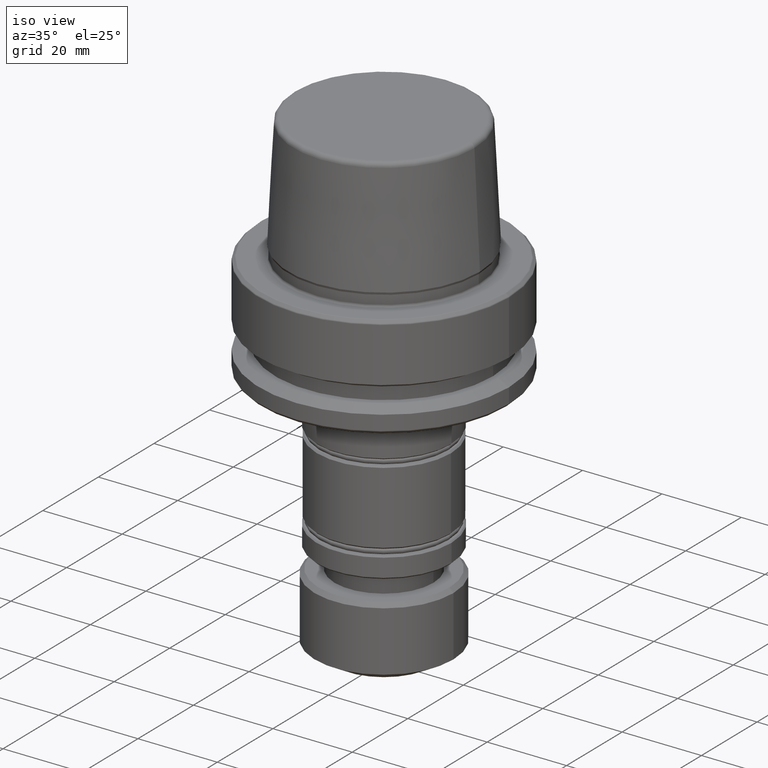
[diagram: clean part render]
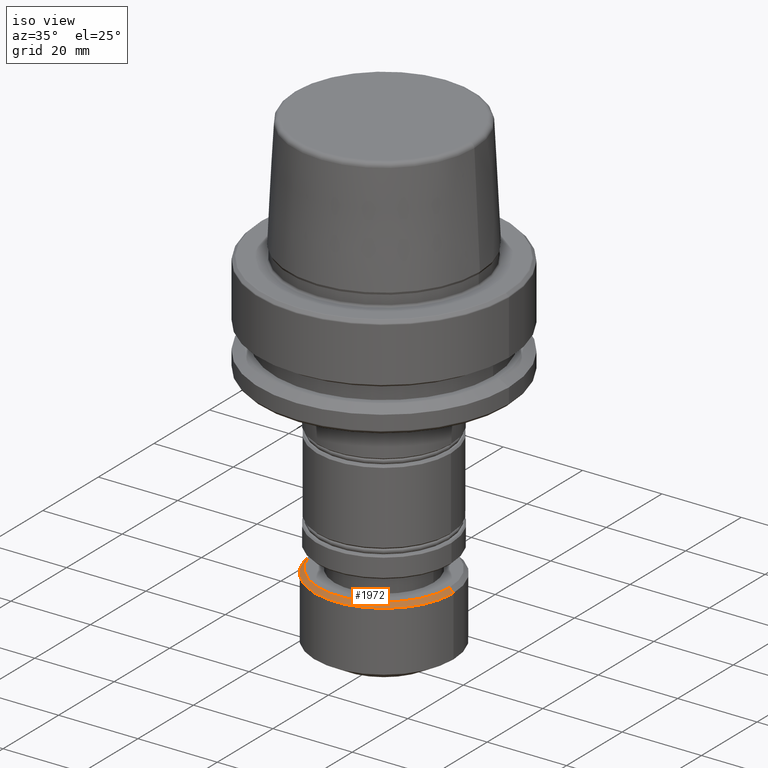
[diagram: same view with one face highlighted and labeled with its STEP entity id]
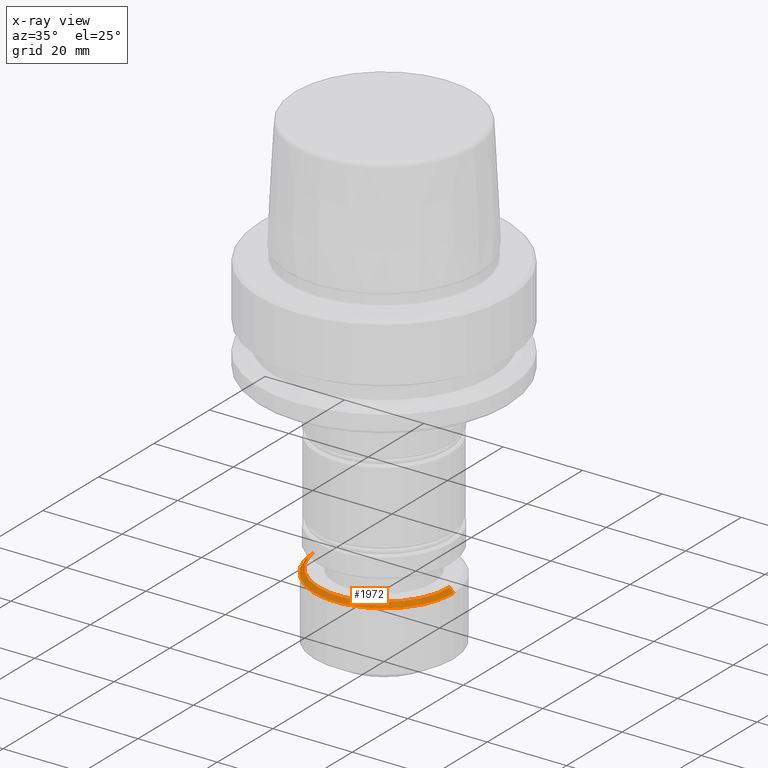
[diagram: x-ray of the same camera — body ghosted, the highlighted face saturated]
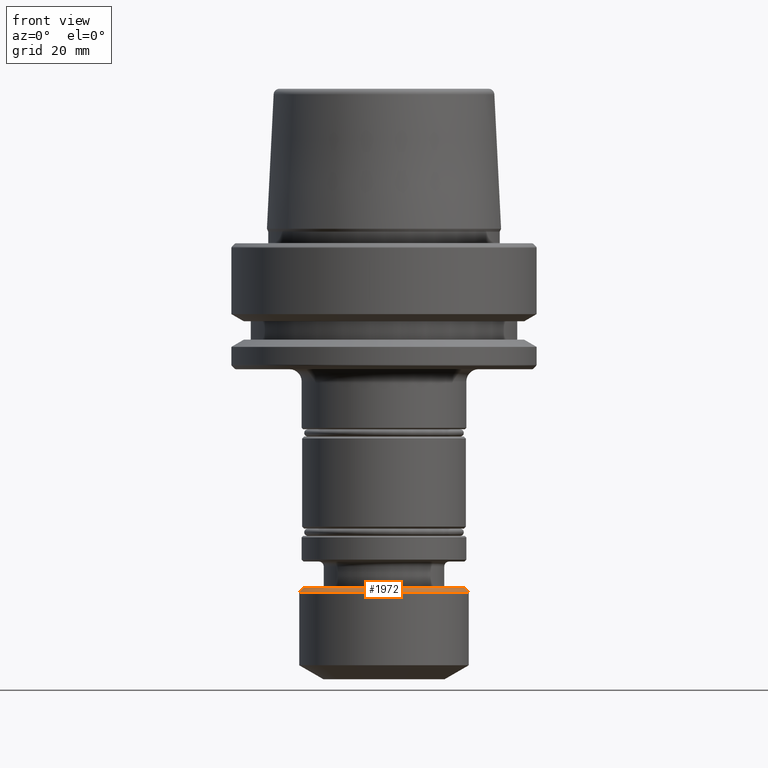
[diagram: same view with one face highlighted and labeled with its STEP entity id]
A machine part, iso view. The second image highlights one B-rep face of the part: STEP entity #1972.
The next image is the same camera in x-ray: the body ghosted, the highlighted face saturated — about 0% of this face is hidden behind the body in this view.
A second angle (front view) of the same face is appended — the face is thin or edge-on in the first view.
In plain terms, the highlighted conical surface has half-angle 45 deg.
Its self-contained STEP definition (entity closure, byte-faithful):
#50 = CIRCLE ( 'NONE', #1349, 16.50000000000218100 ) ;
#107 = DIRECTION ( 'NONE',  ( -0.0000000000000000000, -0.0000000000000000000, 1.000000000000000000 ) ) ;
#152 = CARTESIAN_POINT ( 'NONE',  ( -16.50000000000218100, 0.0000000000000000000, -70.99999999999987200 ) ) ;
#217 = DIRECTION ( 'NONE',  ( 0.0000000000000000000, 0.0000000000000000000, -1.000000000000000000 ) ) ;
#236 = DIRECTION ( 'NONE',  ( -0.7071067811865474600, 0.0000000000000000000, -0.7071067811865475700 ) ) ;
#243 = CARTESIAN_POINT ( 'NONE',  ( 16.50000000000218100, 2.020667218593399700E-015, -70.99999999999987200 ) ) ;
#303 = DIRECTION ( 'NONE',  ( -0.0000000000000000000, -0.0000000000000000000, 1.000000000000000000 ) ) ;
#334 = VECTOR ( 'NONE', #236, 1000.000000000000000 ) ;
#365 = CARTESIAN_POINT ( 'NONE',  ( 17.50000000000229200, 0.0000000000000000000, -71.99999999999998600 ) ) ;
#374 = VERTEX_POINT ( 'NONE', #704 ) ;
#439 = CIRCLE ( 'NONE', #2087, 17.50000000000229200 ) ;
#450 = DIRECTION ( 'NONE',  ( 0.7071067811865474600, 8.659560562354931600E-017, -0.7071067811865475700 ) ) ;
#451 = ORIENTED_EDGE ( 'NONE', *, *, #1308, .T. ) ;
#495 = VERTEX_POINT ( 'NONE', #1672 ) ;
#685 = CARTESIAN_POINT ( 'NONE',  ( 0.0000000000000000000, 0.0000000000000000000, -70.99999999999987200 ) ) ;
#704 = CARTESIAN_POINT ( 'NONE',  ( -16.50000000000218100, 0.0000000000000000000, -70.99999999999987200 ) ) ;
#711 = VERTEX_POINT ( 'NONE', #365 ) ;
#723 = CARTESIAN_POINT ( 'NONE',  ( 0.0000000000000000000, 0.0000000000000000000, -71.99999999999998600 ) ) ;
#730 = DIRECTION ( 'NONE',  ( 1.000000000000000000, 0.0000000000000000000, 0.0000000000000000000 ) ) ;
#851 = LINE ( 'NONE', #152, #334 ) ;
#874 = EDGE_CURVE ( 'NONE', #1082, #711, #1751, .T. ) ;
#948 = ORIENTED_EDGE ( 'NONE', *, *, #874, .F. ) ;
#988 = FACE_OUTER_BOUND ( 'NONE', #1539, .T. ) ;
#1077 = CARTESIAN_POINT ( 'NONE',  ( 16.50000000000218100, 2.081899558550774400E-015, -70.99999999999987200 ) ) ;
#1082 = VERTEX_POINT ( 'NONE', #1077 ) ;
#1239 = CARTESIAN_POINT ( 'NONE',  ( 0.0000000000000000000, 0.0000000000000000000, -70.99999999999987200 ) ) ;
#1308 = EDGE_CURVE ( 'NONE', #495, #711, #439, .T. ) ;
#1326 = DIRECTION ( 'NONE',  ( -1.000000000000000000, 0.0000000000000000000, 0.0000000000000000000 ) ) ;
#1349 = AXIS2_PLACEMENT_3D ( 'NONE', #1239, #303, #1411 ) ;
#1381 = EDGE_CURVE ( 'NONE', #374, #495, #851, .T. ) ;
#1411 = DIRECTION ( 'NONE',  ( 1.000000000000000000, 0.0000000000000000000, 0.0000000000000000000 ) ) ;
#1479 = CONICAL_SURFACE ( 'NONE', #1859, 16.50000000000218100, 0.7853981633974482800 ) ;
#1539 = EDGE_LOOP ( 'NONE', ( #948, #1844, #1853, #451 ) ) ;
#1672 = CARTESIAN_POINT ( 'NONE',  ( -17.50000000000229200, 2.143131898508148700E-015, -71.99999999999998600 ) ) ;
#1722 = EDGE_CURVE ( 'NONE', #374, #1082, #50, .T. ) ;
#1751 = LINE ( 'NONE', #243, #1752 ) ;
#1752 = VECTOR ( 'NONE', #450, 1000.000000000000000 ) ;
#1844 = ORIENTED_EDGE ( 'NONE', *, *, #1722, .F. ) ;
#1853 = ORIENTED_EDGE ( 'NONE', *, *, #1381, .T. ) ;
#1859 = AXIS2_PLACEMENT_3D ( 'NONE', #685, #217, #1326 ) ;
#1972 = ADVANCED_FACE ( 'NONE', ( #988 ), #1479, .T. ) ;
#2087 = AXIS2_PLACEMENT_3D ( 'NONE', #723, #107, #730 ) ;